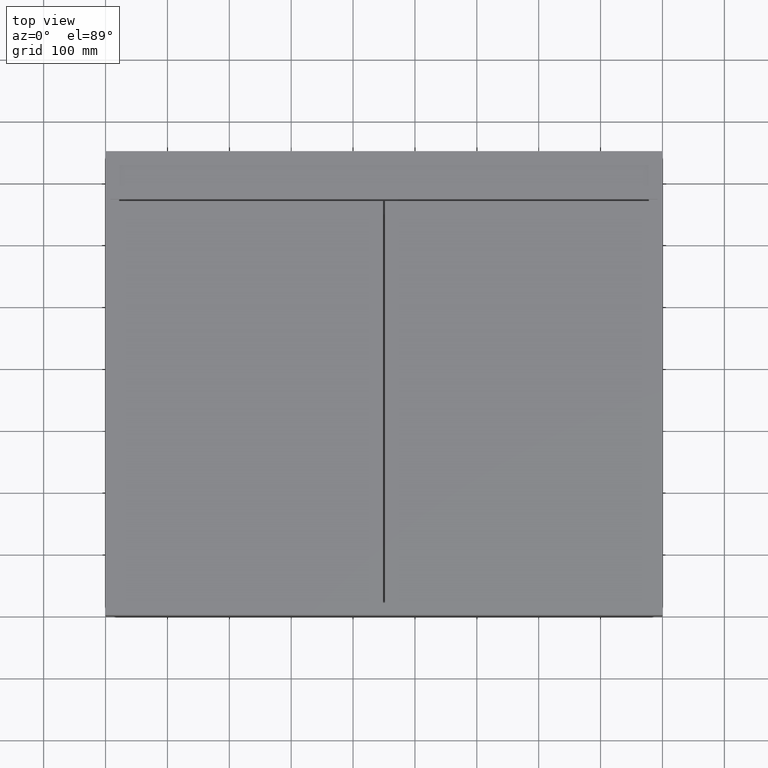
[diagram: clean part render]
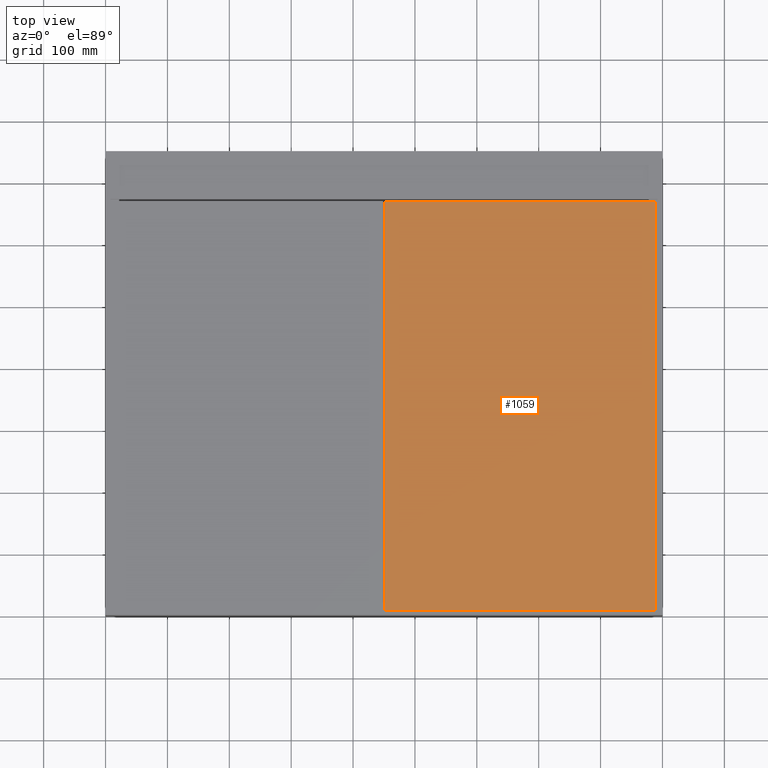
[diagram: same view with one face highlighted and labeled with its STEP entity id]
A machine part, top view. The second image highlights one B-rep face of the part: STEP entity #1059.
In plain terms, the highlighted planar face has unit normal (0, 0, 1).
Its self-contained STEP definition (entity closure, byte-faithful):
#112 = LINE ( 'NONE', #3511, #894 ) ;
#589 = CARTESIAN_POINT ( 'NONE',  ( 0.0000000000000000000, 0.0000000000000000000, -8.326672684688674053E-14 ) ) ;
#716 = CARTESIAN_POINT ( 'NONE',  ( 451.4999999999999432, 668.9999000000001388, -8.326672684688674053E-14 ) ) ;
#894 = VECTOR ( 'NONE', #6928, 1000.000000000000000 ) ;
#956 = CARTESIAN_POINT ( 'NONE',  ( 451.5000000000000000, 8.000000000000007105, -8.326672684688674053E-14 ) ) ;
#1059 = ADVANCED_FACE ( 'NONE', ( #4819 ), #8240, .T. ) ;
#1736 = VERTEX_POINT ( 'NONE', #956 ) ;
#1825 = EDGE_CURVE ( 'NONE', #9213, #1736, #2011, .T. ) ;
#2011 = LINE ( 'NONE', #5409, #7009 ) ;
#2552 = DIRECTION ( 'NONE',  ( 1.000000000000000000, 1.586032892321651496E-17, 0.0000000000000000000 ) ) ;
#2598 = VERTEX_POINT ( 'NONE', #6907 ) ;
#3511 = CARTESIAN_POINT ( 'NONE',  ( 888.9999999999998863, 668.9999000000001388, -8.326672684688674053E-14 ) ) ;
#3985 = DIRECTION ( 'NONE',  ( 0.0000000000000000000, 0.0000000000000000000, 1.000000000000000000 ) ) ;
#4102 = ORIENTED_EDGE ( 'NONE', *, *, #7975, .T. ) ;
#4113 = DIRECTION ( 'NONE',  ( -1.000000000000000000, 3.345206069296006042E-36, 0.0000000000000000000 ) ) ;
#4819 = FACE_OUTER_BOUND ( 'NONE', #7538, .T. ) ;
#5409 = CARTESIAN_POINT ( 'NONE',  ( 451.4999999999999432, 668.9999000000001388, -8.326672684688674053E-14 ) ) ;
#5670 = ORIENTED_EDGE ( 'NONE', *, *, #7023, .T. ) ;
#5951 = CARTESIAN_POINT ( 'NONE',  ( 888.9999999999998863, 668.9999000000001388, -8.326672684688674053E-14 ) ) ;
#6083 = VERTEX_POINT ( 'NONE', #5951 ) ;
#6218 = ORIENTED_EDGE ( 'NONE', *, *, #1825, .T. ) ;
#6334 = ORIENTED_EDGE ( 'NONE', *, *, #10351, .T. ) ;
#6792 = LINE ( 'NONE', #10207, #10397 ) ;
#6907 = CARTESIAN_POINT ( 'NONE',  ( 889.0000000000001137, 8.000000000000007105, -8.326672684688674053E-14 ) ) ;
#6928 = DIRECTION ( 'NONE',  ( -1.679611486514833642E-16, 1.000000000000000000, 0.0000000000000000000 ) ) ;
#7009 = VECTOR ( 'NONE', #8838, 1000.000000000000000 ) ;
#7023 = EDGE_CURVE ( 'NONE', #2598, #6083, #112, .T. ) ;
#7404 = DIRECTION ( 'NONE',  ( 1.000000000000000000, -3.345206069296006042E-36, 0.0000000000000000000 ) ) ;
#7538 = EDGE_LOOP ( 'NONE', ( #6218, #6334, #5670, #4102 ) ) ;
#7975 = EDGE_CURVE ( 'NONE', #6083, #9213, #8375, .T. ) ;
#8240 = PLANE ( 'NONE',  #9524 ) ;
#8375 = LINE ( 'NONE', #716, #9089 ) ;
#8838 = DIRECTION ( 'NONE',  ( 8.398057432574168212E-17, -1.000000000000000000, 0.0000000000000000000 ) ) ;
#9089 = VECTOR ( 'NONE', #4113, 1000.000000000000000 ) ;
#9213 = VERTEX_POINT ( 'NONE', #10668 ) ;
#9524 = AXIS2_PLACEMENT_3D ( 'NONE', #589, #3985, #7404 ) ;
#10207 = CARTESIAN_POINT ( 'NONE',  ( 451.5000000000000000, 8.000000000000007105, -8.326672684688674053E-14 ) ) ;
#10351 = EDGE_CURVE ( 'NONE', #1736, #2598, #6792, .T. ) ;
#10397 = VECTOR ( 'NONE', #2552, 1000.000000000000000 ) ;
#10668 = CARTESIAN_POINT ( 'NONE',  ( 451.4999999999999432, 668.9999000000001388, -8.326672684688674053E-14 ) ) ;